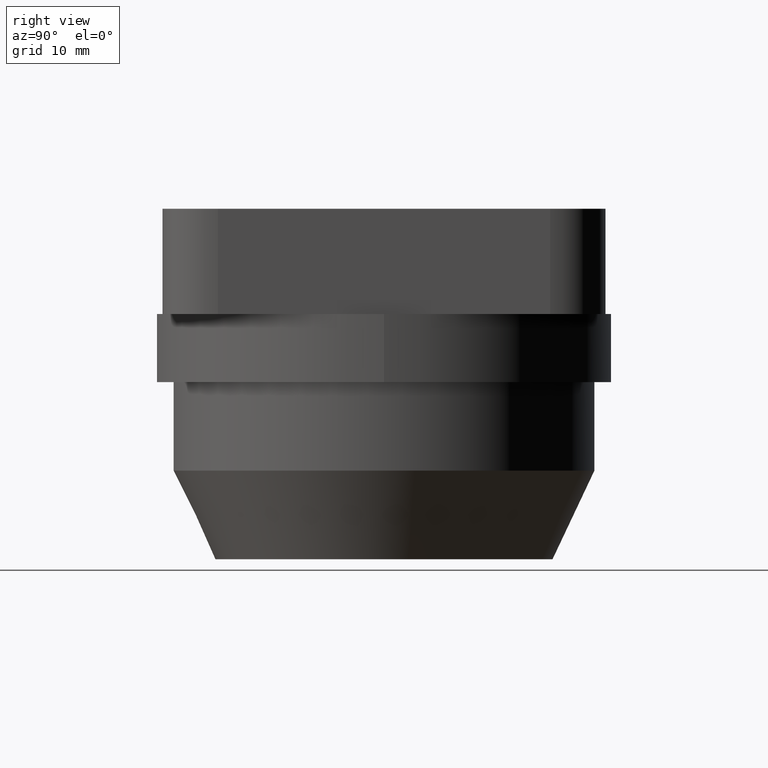
[diagram: clean part render]
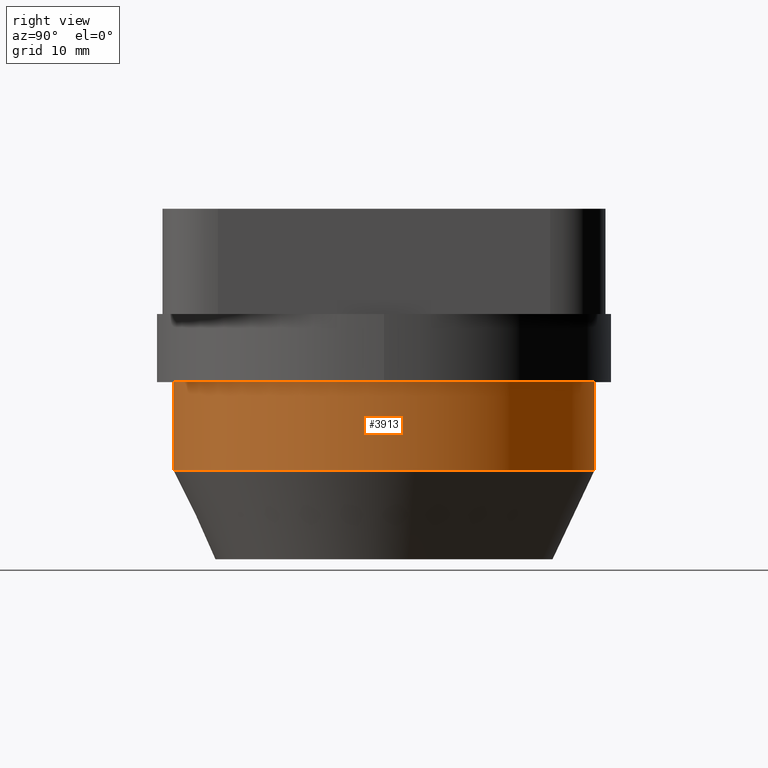
[diagram: same view with one face highlighted and labeled with its STEP entity id]
A machine part, right view. The second image highlights one B-rep face of the part: STEP entity #3913.
In plain terms, the highlighted cylindrical surface (bore or boss wall) has radius 19 mm, axis along (0, -0, 1).
Its self-contained STEP definition (entity closure, byte-faithful):
#3879=CARTESIAN_POINT('',(-14.391498448567859,29.879308421588469,0.0));
#3880=VERTEX_POINT('',#3879);
#3881=CARTESIAN_POINT('',(-14.391498448567859,10.879308421588467,0.0));
#3882=DIRECTION('',(1.0,0.0,0.0));
#3883=DIRECTION('',(0.0,1.0,0.0));
#3884=AXIS2_PLACEMENT_3D('',#3881,#3882,#3883);
#3885=CIRCLE('',#3884,19.000000000000004);
#3886=EDGE_CURVE('',#3880,#3880,#3885,.T.);
#3894=CARTESIAN_POINT('',(-10.391498448567859,10.879308421588467,0.0));
#3895=DIRECTION('',(1.0,0.0,0.0));
#3896=DIRECTION('',(0.0,1.0,0.0));
#3897=AXIS2_PLACEMENT_3D('',#3894,#3895,#3896);
#3898=CYLINDRICAL_SURFACE('',#3897,19.000000000000004);
#3899=CARTESIAN_POINT('',(-6.391498448567860,29.879308421588469,0.0));
#3900=VERTEX_POINT('',#3899);
#3901=CARTESIAN_POINT('',(-6.391498448567860,10.879308421588467,0.0));
#3902=DIRECTION('',(1.0,0.0,0.0));
#3903=DIRECTION('',(0.0,1.0,0.0));
#3904=AXIS2_PLACEMENT_3D('',#3901,#3902,#3903);
#3905=CIRCLE('',#3904,19.000000000000004);
#3906=EDGE_CURVE('',#3900,#3900,#3905,.T.);
#3907=ORIENTED_EDGE('',*,*,#3906,.F.);
#3908=EDGE_LOOP('',(#3907));
#3909=FACE_OUTER_BOUND('',#3908,.T.);
#3910=ORIENTED_EDGE('',*,*,#3886,.T.);
#3911=EDGE_LOOP('',(#3910));
#3912=FACE_BOUND('',#3911,.T.);
#3913=ADVANCED_FACE('',(#3909,#3912),#3898,.T.);